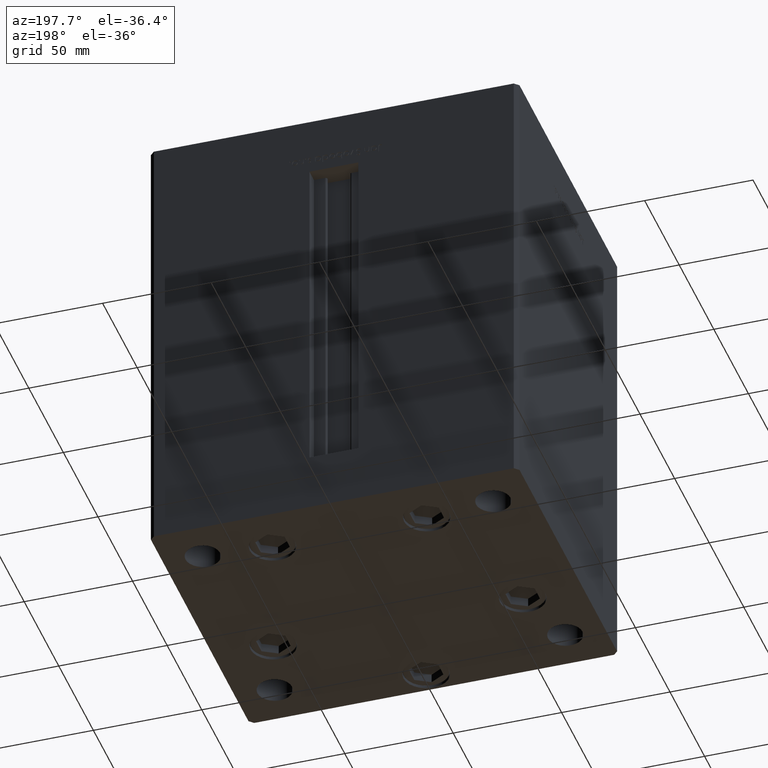
[diagram: clean part render]
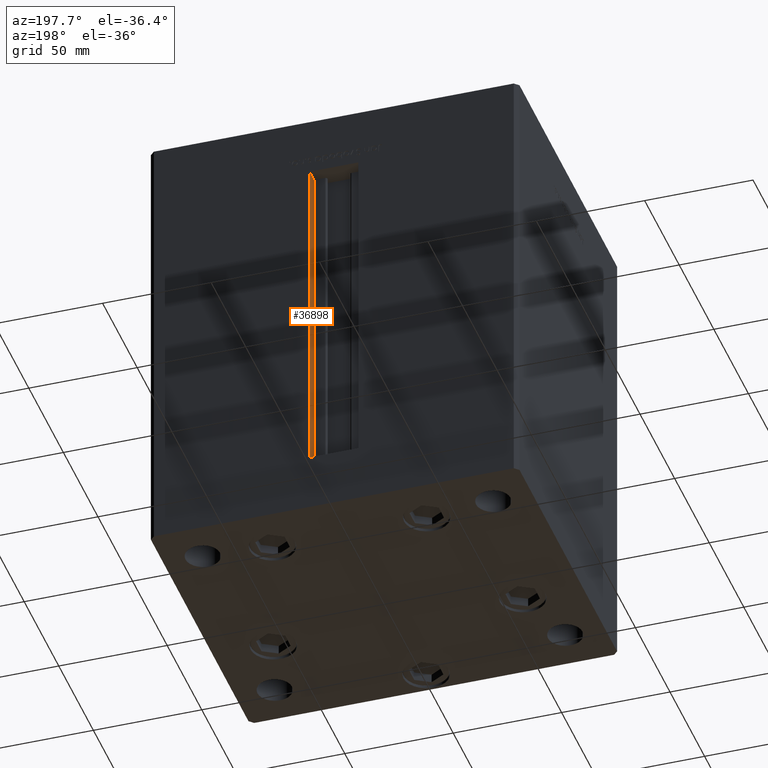
[diagram: same view with one face highlighted and labeled with its STEP entity id]
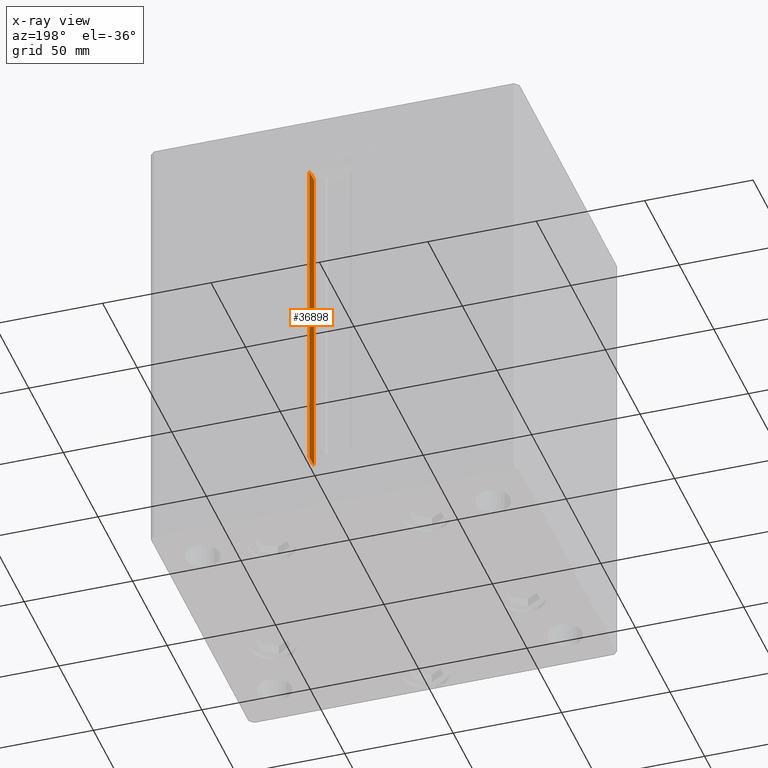
[diagram: x-ray of the same camera — body ghosted, the highlighted face saturated]
A machine part, auxiliary view. The second image highlights one B-rep face of the part: STEP entity #36898.
The next image is the same camera in x-ray: the body ghosted, the highlighted face saturated — about 0% of this face is hidden behind the body in this view.
In plain terms, the highlighted planar face has unit normal (1, 0, 0).
Its self-contained STEP definition (entity closure, byte-faithful):
#844 = DIRECTION ( 'NONE',  ( 0.000000000000000000, 1.000000000000000000, 0.000000000000000000 ) ) ;
#1299 = CARTESIAN_POINT ( 'NONE',  ( 11.24999999999999467, 72.49999999999998579, 156.0000000000000000 ) ) ;
#1726 = DIRECTION ( 'NONE',  ( -0.000000000000000000, -0.000000000000000000, 1.000000000000000000 ) ) ;
#4306 = VECTOR ( 'NONE', #22719, 1000.000000000000000 ) ;
#4611 = CARTESIAN_POINT ( 'NONE',  ( 11.25000000000000178, 72.49999999999998579, 0.000000000000000000 ) ) ;
#6206 = CARTESIAN_POINT ( 'NONE',  ( 11.25000000000000178, 65.99999999999997158, 0.000000000000000000 ) ) ;
#8871 = CARTESIAN_POINT ( 'NONE',  ( 11.25000000000000178, 72.49999999999998579, 0.000000000000000000 ) ) ;
#10103 = VECTOR ( 'NONE', #24978, 1000.000000000000000 ) ;
#10550 = CARTESIAN_POINT ( 'NONE',  ( 11.25000000000000178, 0.000000000000000000, 156.0000000000000000 ) ) ;
#11037 = VERTEX_POINT ( 'NONE', #18667 ) ;
#11282 = ORIENTED_EDGE ( 'NONE', *, *, #36142, .T. ) ;
#12821 = LINE ( 'NONE', #8871, #10103 ) ;
#14101 = DIRECTION ( 'NONE',  ( 1.000000000000000000, -0.000000000000000000, 0.000000000000000000 ) ) ;
#16420 = LINE ( 'NONE', #20906, #34819 ) ;
#18588 = PLANE ( 'NONE',  #19122 ) ;
#18667 = CARTESIAN_POINT ( 'NONE',  ( 11.25000000000000178, 65.99999999999997158, 0.000000000000000000 ) ) ;
#19122 = AXIS2_PLACEMENT_3D ( 'NONE', #6206, #14101, #34149 ) ;
#20906 = CARTESIAN_POINT ( 'NONE',  ( 11.25000000000000178, 65.99999999999997158, 0.000000000000000000 ) ) ;
#20922 = ORIENTED_EDGE ( 'NONE', *, *, #44626, .F. ) ;
#21526 = LINE ( 'NONE', #45722, #36756 ) ;
#21940 = VERTEX_POINT ( 'NONE', #4611 ) ;
#22542 = VERTEX_POINT ( 'NONE', #43068 ) ;
#22719 = DIRECTION ( 'NONE',  ( -0.000000000000000000, -1.000000000000000000, 0.000000000000000000 ) ) ;
#22866 = EDGE_CURVE ( 'NONE', #11037, #21940, #16420, .T. ) ;
#22914 = ORIENTED_EDGE ( 'NONE', *, *, #22866, .F. ) ;
#24978 = DIRECTION ( 'NONE',  ( -0.000000000000000000, -0.000000000000000000, 1.000000000000000000 ) ) ;
#28308 = ORIENTED_EDGE ( 'NONE', *, *, #41539, .F. ) ;
#34149 = DIRECTION ( 'NONE',  ( 0.000000000000000000, 0.000000000000000000, -1.000000000000000000 ) ) ;
#34819 = VECTOR ( 'NONE', #844, 1000.000000000000000 ) ;
#36142 = EDGE_CURVE ( 'NONE', #11037, #22542, #21526, .T. ) ;
#36756 = VECTOR ( 'NONE', #1726, 1000.000000000000000 ) ;
#36898 = ADVANCED_FACE ( 'NONE', ( #42294 ), #18588, .F. ) ;
#38906 = EDGE_LOOP ( 'NONE', ( #28308, #22914, #11282, #20922 ) ) ;
#41539 = EDGE_CURVE ( 'NONE', #21940, #42820, #12821, .T. ) ;
#42294 = FACE_OUTER_BOUND ( 'NONE', #38906, .T. ) ;
#42820 = VERTEX_POINT ( 'NONE', #1299 ) ;
#43068 = CARTESIAN_POINT ( 'NONE',  ( 11.25000000000000178, 65.99999999999997158, 156.0000000000000000 ) ) ;
#44626 = EDGE_CURVE ( 'NONE', #42820, #22542, #50884, .T. ) ;
#45722 = CARTESIAN_POINT ( 'NONE',  ( 11.25000000000000178, 65.99999999999997158, 0.000000000000000000 ) ) ;
#50884 = LINE ( 'NONE', #10550, #4306 ) ;